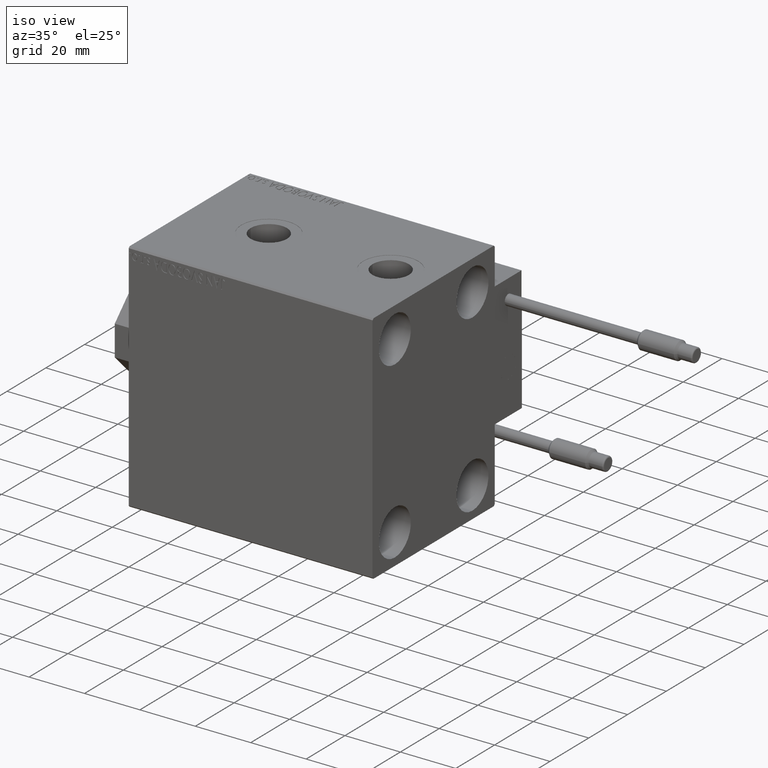
[diagram: clean part render]
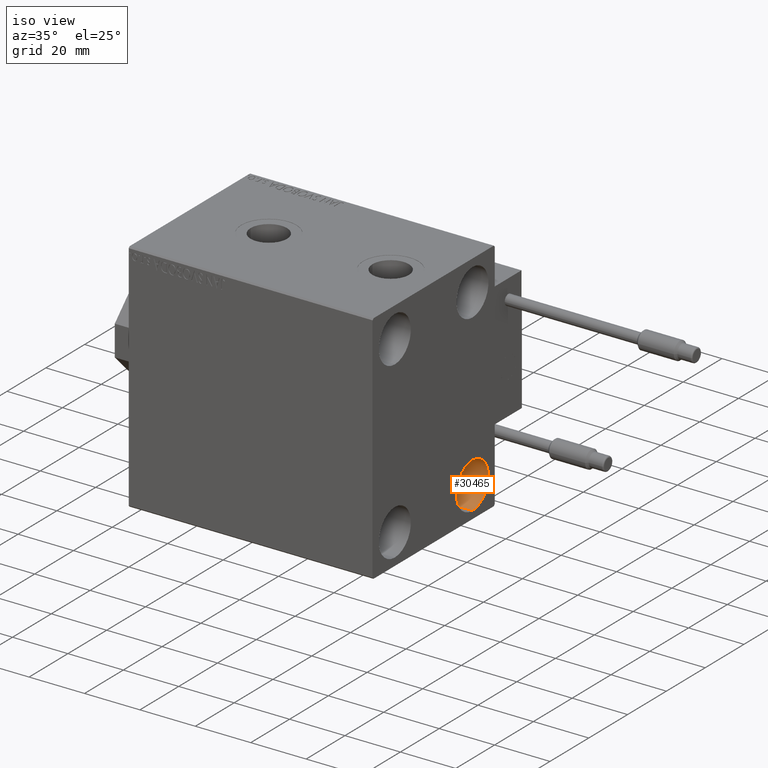
[diagram: same view with one face highlighted and labeled with its STEP entity id]
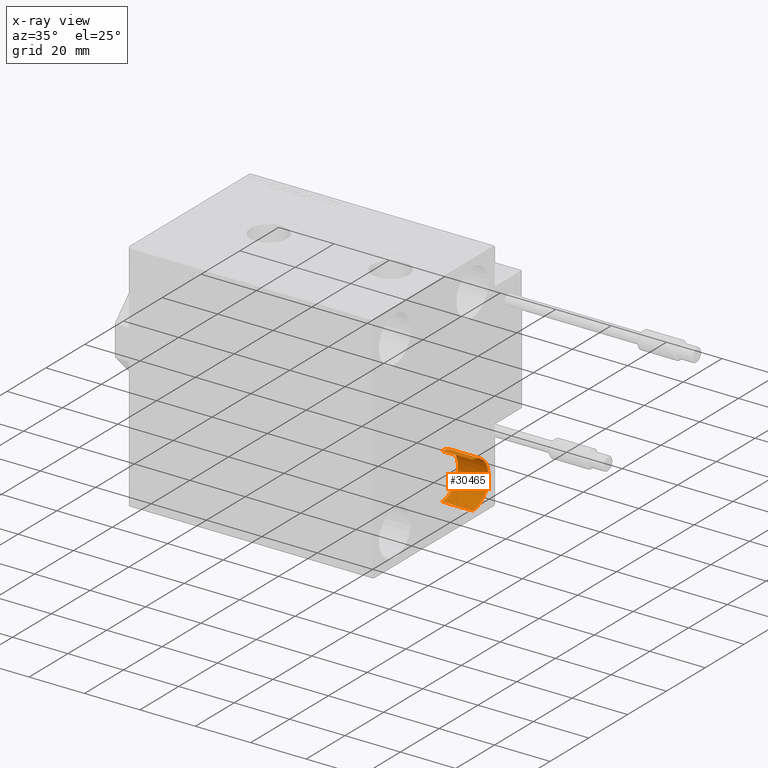
[diagram: x-ray of the same camera — body ghosted, the highlighted face saturated]
A machine part, iso view. The second image highlights one B-rep face of the part: STEP entity #30465.
The next image is the same camera in x-ray: the body ghosted, the highlighted face saturated — about 0% of this face is hidden behind the body in this view.
In plain terms, the highlighted cylindrical surface (edge-blend (fillet) strip) has radius 8.25 mm, axis along (1, 0, 0).
Its self-contained STEP definition (entity closure, byte-faithful):
#30 = CIRCLE ( 'NONE', #24558, 8.250000000000000000 ) ;
#1692 = CARTESIAN_POINT ( 'NONE',  ( 88.00000000000000000, 19.99999999999999645, -23.24999999999999289 ) ) ;
#3247 = EDGE_CURVE ( 'NONE', #36965, #45932, #47547, .T. ) ;
#4051 = CARTESIAN_POINT ( 'NONE',  ( 88.00000000000000000, 19.99999999999999645, -31.49999999999999289 ) ) ;
#4088 = LINE ( 'NONE', #42972, #30220 ) ;
#5078 = DIRECTION ( 'NONE',  ( 1.000000000000000000, -0.000000000000000000, -0.000000000000000000 ) ) ;
#5962 = VECTOR ( 'NONE', #5078, 1000.000000000000000 ) ;
#7250 = FACE_OUTER_BOUND ( 'NONE', #49356, .T. ) ;
#8176 = DIRECTION ( 'NONE',  ( 1.000000000000000000, -0.000000000000000000, -0.000000000000000000 ) ) ;
#8220 = DIRECTION ( 'NONE',  ( 0.000000000000000000, 0.000000000000000000, 1.000000000000000000 ) ) ;
#10762 = CARTESIAN_POINT ( 'NONE',  ( 88.00000000000000000, 19.99999999999999645, -39.74999999999999289 ) ) ;
#10952 = CARTESIAN_POINT ( 'NONE',  ( 77.00000000000000000, 19.99999999999999645, -23.24999999999999289 ) ) ;
#11693 = AXIS2_PLACEMENT_3D ( 'NONE', #34634, #49981, #14941 ) ;
#14941 = DIRECTION ( 'NONE',  ( 0.000000000000000000, 0.000000000000000000, -1.000000000000000000 ) ) ;
#15265 = ORIENTED_EDGE ( 'NONE', *, *, #25112, .F. ) ;
#17289 = ORIENTED_EDGE ( 'NONE', *, *, #50095, .T. ) ;
#22603 = ORIENTED_EDGE ( 'NONE', *, *, #3247, .F. ) ;
#22997 = DIRECTION ( 'NONE',  ( 0.000000000000000000, 0.000000000000000000, 1.000000000000000000 ) ) ;
#23617 = VERTEX_POINT ( 'NONE', #10762 ) ;
#24558 = AXIS2_PLACEMENT_3D ( 'NONE', #4051, #38345, #22997 ) ;
#24797 = CARTESIAN_POINT ( 'NONE',  ( 77.00000000000000000, 19.99999999999999645, -23.24999999999999289 ) ) ;
#25112 = EDGE_CURVE ( 'NONE', #45932, #23617, #30, .T. ) ;
#27220 = CYLINDRICAL_SURFACE ( 'NONE', #11693, 8.250000000000000000 ) ;
#27691 = CARTESIAN_POINT ( 'NONE',  ( 77.00000000000000000, 19.99999999999999645, -31.49999999999999289 ) ) ;
#30220 = VECTOR ( 'NONE', #8176, 1000.000000000000000 ) ;
#30465 = ADVANCED_FACE ( 'NONE', ( #7250 ), #27220, .F. ) ;
#34634 = CARTESIAN_POINT ( 'NONE',  ( 77.00000000000000000, 19.99999999999999645, -31.49999999999999289 ) ) ;
#36965 = VERTEX_POINT ( 'NONE', #10952 ) ;
#37093 = VERTEX_POINT ( 'NONE', #48030 ) ;
#38345 = DIRECTION ( 'NONE',  ( -1.000000000000000000, -0.000000000000000000, -0.000000000000000000 ) ) ;
#38473 = ORIENTED_EDGE ( 'NONE', *, *, #46476, .T. ) ;
#42972 = CARTESIAN_POINT ( 'NONE',  ( 77.00000000000000000, 19.99999999999999645, -39.74999999999999289 ) ) ;
#43152 = AXIS2_PLACEMENT_3D ( 'NONE', #27691, #43267, #8220 ) ;
#43267 = DIRECTION ( 'NONE',  ( -1.000000000000000000, -0.000000000000000000, -0.000000000000000000 ) ) ;
#45932 = VERTEX_POINT ( 'NONE', #1692 ) ;
#46476 = EDGE_CURVE ( 'NONE', #36965, #37093, #50506, .T. ) ;
#47547 = LINE ( 'NONE', #24797, #5962 ) ;
#48030 = CARTESIAN_POINT ( 'NONE',  ( 77.00000000000000000, 19.99999999999999645, -39.74999999999999289 ) ) ;
#49356 = EDGE_LOOP ( 'NONE', ( #22603, #38473, #17289, #15265 ) ) ;
#49981 = DIRECTION ( 'NONE',  ( 1.000000000000000000, -0.000000000000000000, -0.000000000000000000 ) ) ;
#50095 = EDGE_CURVE ( 'NONE', #37093, #23617, #4088, .T. ) ;
#50506 = CIRCLE ( 'NONE', #43152, 8.250000000000000000 ) ;